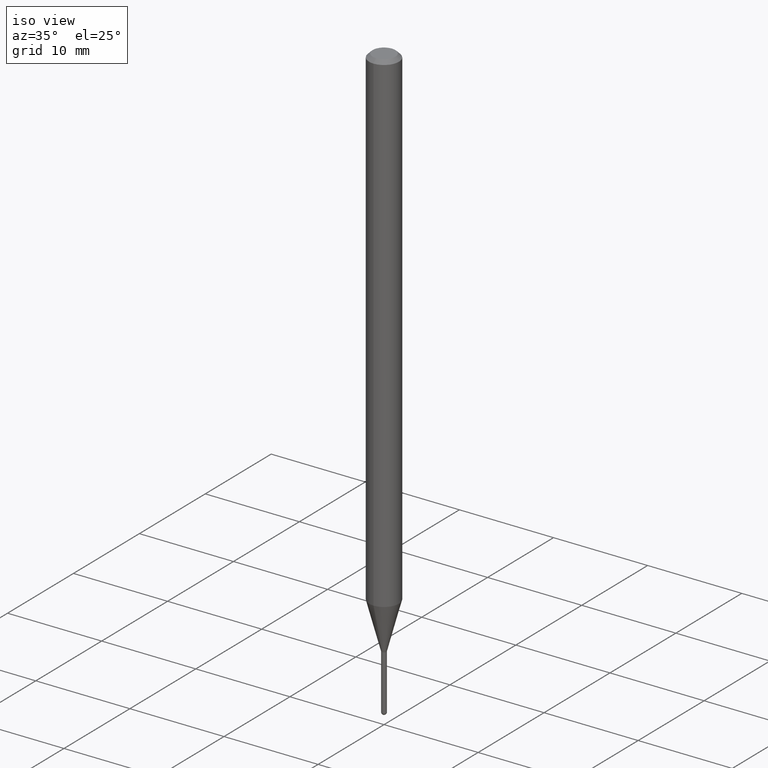
[diagram: clean part render]
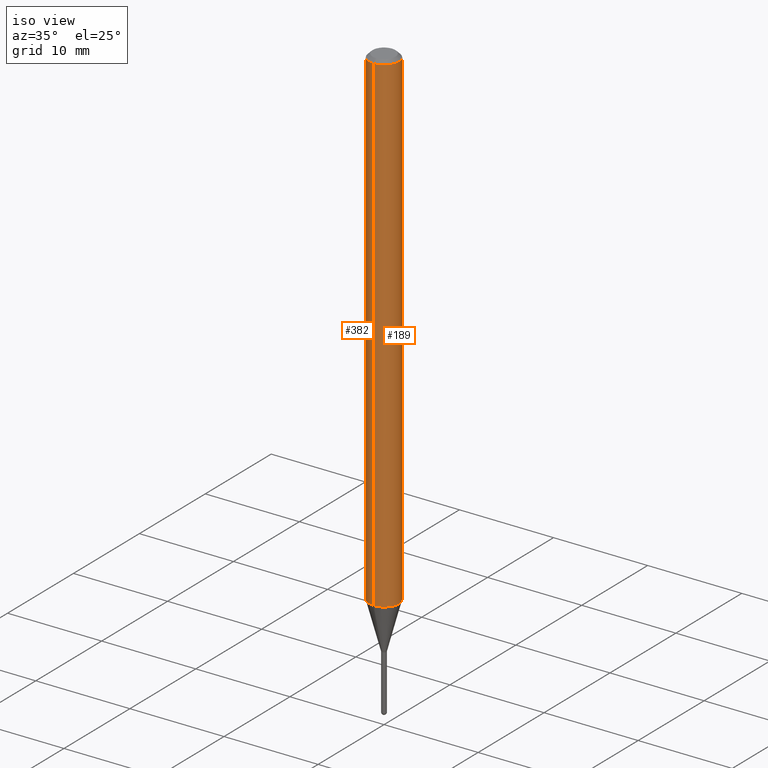
[diagram: same view with one multi-face feature highlighted, each face labeled with its STEP entity id]
A machine part, iso view. The highlighted faces form ONE feature: a constant-radius fillet chain: 2 tangent blend faces with common blend radius 1.5875 mm. The faces share edges in the B-rep.
Their STEP definitions:
[1] entity #189 (Cylinder):
#18 = AXIS2_PLACEMENT_3D ( 'NONE', #251, #452, #129 ) ;
#23 = ORIENTED_EDGE ( 'NONE', *, *, #235, .T. ) ;
#26 = VERTEX_POINT ( 'NONE', #325 ) ;
#36 = EDGE_LOOP ( 'NONE', ( #23, #97, #376, #500 ) ) ;
#58 = DIRECTION ( 'NONE',  ( -2.445506458260102306E-29, 3.491427418928771548E-15, 1.000000000000000000 ) ) ;
#60 = DIRECTION ( 'NONE',  ( -2.445506458260102306E-29, 3.491427418928771548E-15, 1.000000000000000000 ) ) ;
#74 = VERTEX_POINT ( 'NONE', #77 ) ;
#77 = CARTESIAN_POINT ( 'NONE',  ( 4.440892098501133991E-16, 0.06249999999999995143, -0.01500000000000022669 ) ) ;
#91 = DIRECTION ( 'NONE',  ( -2.445506458260102306E-29, 3.491427418928771153E-15, 1.000000000000000000 ) ) ;
#96 = CARTESIAN_POINT ( 'NONE',  ( 5.047689992163456778E-29, -7.206541279564027656E-15, -2.064067332602639304 ) ) ;
#97 = ORIENTED_EDGE ( 'NONE', *, *, #125, .T. ) ;
#106 = VERTEX_POINT ( 'NONE', #116 ) ;
#116 = CARTESIAN_POINT ( 'NONE',  ( 4.440892098501130047E-16, 0.06249999999999279743, -2.064067332602639304 ) ) ;
#123 = LINE ( 'NONE', #284, #287 ) ;
#125 = EDGE_CURVE ( 'NONE', #106, #74, #123, .T. ) ;
#129 = DIRECTION ( 'NONE',  ( -6.982962677686265922E-15, -1.000000000000000000, 3.491427418928771548E-15 ) ) ;
#160 = EDGE_CURVE ( 'NONE', #269, #74, #379, .T. ) ;
#166 = CIRCLE ( 'NONE', #439, 0.06250000000000000000 ) ;
#172 = DIRECTION ( 'NONE',  ( -6.982962677686265922E-15, -1.000000000000000000, 3.483106191921935554E-15 ) ) ;
#173 = VECTOR ( 'NONE', #335, 39.37007874015748143 ) ;
#183 = EDGE_CURVE ( 'NONE', #26, #269, #212, .T. ) ;
#189 = ADVANCED_FACE ( 'NONE', ( #481 ), #484, .T. ) ;
#212 = LINE ( 'NONE', #258, #173 ) ;
#214 = CARTESIAN_POINT ( 'NONE',  ( 3.668259687390156296E-31, -5.237141128393160650E-17, -0.01500000000000000812 ) ) ;
#235 = EDGE_CURVE ( 'NONE', #26, #106, #166, .T. ) ;
#251 = CARTESIAN_POINT ( 'NONE',  ( 0.000000000000000000, 0.000000000000000000, 0.000000000000000000 ) ) ;
#258 = CARTESIAN_POINT ( 'NONE',  ( -4.364351673553916201E-16, -0.06250000000000000000, 2.182142136830482217E-16 ) ) ;
#269 = VERTEX_POINT ( 'NONE', #297 ) ;
#284 = CARTESIAN_POINT ( 'NONE',  ( 4.440892098500625669E-16, 0.06250000000000000000, -2.182142136830482217E-16 ) ) ;
#287 = VECTOR ( 'NONE', #91, 39.37007874015748143 ) ;
#297 = CARTESIAN_POINT ( 'NONE',  ( -4.364351673553912750E-16, -0.06250000000000005551, -0.01499999999999979128 ) ) ;
#325 = CARTESIAN_POINT ( 'NONE',  ( -4.364351673553413302E-16, -0.06250000000000721645, -2.064067332602638860 ) ) ;
#327 = DIRECTION ( 'NONE',  ( -6.982962677686265922E-15, -1.000000000000000000, 4.370956789862821150E-15 ) ) ;
#335 = DIRECTION ( 'NONE',  ( -2.445506458260102306E-29, 3.491427418928771153E-15, 1.000000000000000000 ) ) ;
#353 = AXIS2_PLACEMENT_3D ( 'NONE', #214, #58, #172 ) ;
#376 = ORIENTED_EDGE ( 'NONE', *, *, #160, .F. ) ;
#379 = CIRCLE ( 'NONE', #353, 0.06250000000000000000 ) ;
#439 = AXIS2_PLACEMENT_3D ( 'NONE', #96, #60, #327 ) ;
#452 = DIRECTION ( 'NONE',  ( -2.445506458260102306E-29, 3.491427418928771548E-15, 1.000000000000000000 ) ) ;
#481 = FACE_OUTER_BOUND ( 'NONE', #36, .T. ) ;
#484 = CYLINDRICAL_SURFACE ( 'NONE', #18, 0.06250000000000000000 ) ;
#500 = ORIENTED_EDGE ( 'NONE', *, *, #183, .F. ) ;
[2] entity #382 (Cylinder):
#20 = DIRECTION ( 'NONE',  ( -2.445506458260102306E-29, 3.491427418928771548E-15, 1.000000000000000000 ) ) ;
#25 = DIRECTION ( 'NONE',  ( -6.982962677686265922E-15, -1.000000000000000000, 3.491427418928771548E-15 ) ) ;
#26 = VERTEX_POINT ( 'NONE', #325 ) ;
#74 = VERTEX_POINT ( 'NONE', #77 ) ;
#77 = CARTESIAN_POINT ( 'NONE',  ( 4.440892098501133991E-16, 0.06249999999999995143, -0.01500000000000022669 ) ) ;
#91 = DIRECTION ( 'NONE',  ( -2.445506458260102306E-29, 3.491427418928771153E-15, 1.000000000000000000 ) ) ;
#95 = CIRCLE ( 'NONE', #347, 0.06250000000000000000 ) ;
#98 = DIRECTION ( 'NONE',  ( -2.445506458260102306E-29, 3.491427418928771548E-15, 1.000000000000000000 ) ) ;
#100 = ORIENTED_EDGE ( 'NONE', *, *, #125, .F. ) ;
#106 = VERTEX_POINT ( 'NONE', #116 ) ;
#107 = FACE_OUTER_BOUND ( 'NONE', #495, .T. ) ;
#113 = CIRCLE ( 'NONE', #472, 0.06250000000000000000 ) ;
#115 = DIRECTION ( 'NONE',  ( -2.445506458260102306E-29, 3.491427418928771548E-15, 1.000000000000000000 ) ) ;
#116 = CARTESIAN_POINT ( 'NONE',  ( 4.440892098501130047E-16, 0.06249999999999279743, -2.064067332602639304 ) ) ;
#118 = DIRECTION ( 'NONE',  ( -6.982962677686265922E-15, -1.000000000000000000, 4.370956789862821150E-15 ) ) ;
#123 = LINE ( 'NONE', #284, #287 ) ;
#125 = EDGE_CURVE ( 'NONE', #106, #74, #123, .T. ) ;
#150 = ORIENTED_EDGE ( 'NONE', *, *, #274, .F. ) ;
#164 = DIRECTION ( 'NONE',  ( -6.982962677686265922E-15, -1.000000000000000000, 3.483106191921935554E-15 ) ) ;
#173 = VECTOR ( 'NONE', #335, 39.37007874015748143 ) ;
#175 = CARTESIAN_POINT ( 'NONE',  ( 0.000000000000000000, 0.000000000000000000, 0.000000000000000000 ) ) ;
#183 = EDGE_CURVE ( 'NONE', #26, #269, #212, .T. ) ;
#212 = LINE ( 'NONE', #258, #173 ) ;
#227 = CYLINDRICAL_SURFACE ( 'NONE', #271, 0.06250000000000000000 ) ;
#228 = ORIENTED_EDGE ( 'NONE', *, *, #491, .T. ) ;
#238 = ORIENTED_EDGE ( 'NONE', *, *, #183, .T. ) ;
#258 = CARTESIAN_POINT ( 'NONE',  ( -4.364351673553916201E-16, -0.06250000000000000000, 2.182142136830482217E-16 ) ) ;
#269 = VERTEX_POINT ( 'NONE', #297 ) ;
#271 = AXIS2_PLACEMENT_3D ( 'NONE', #175, #20, #25 ) ;
#274 = EDGE_CURVE ( 'NONE', #74, #269, #113, .T. ) ;
#284 = CARTESIAN_POINT ( 'NONE',  ( 4.440892098500625669E-16, 0.06250000000000000000, -2.182142136830482217E-16 ) ) ;
#287 = VECTOR ( 'NONE', #91, 39.37007874015748143 ) ;
#297 = CARTESIAN_POINT ( 'NONE',  ( -4.364351673553912750E-16, -0.06250000000000005551, -0.01499999999999979128 ) ) ;
#325 = CARTESIAN_POINT ( 'NONE',  ( -4.364351673553413302E-16, -0.06250000000000721645, -2.064067332602638860 ) ) ;
#335 = DIRECTION ( 'NONE',  ( -2.445506458260102306E-29, 3.491427418928771153E-15, 1.000000000000000000 ) ) ;
#347 = AXIS2_PLACEMENT_3D ( 'NONE', #355, #115, #118 ) ;
#355 = CARTESIAN_POINT ( 'NONE',  ( 5.047689992163456778E-29, -7.206541279564027656E-15, -2.064067332602639304 ) ) ;
#382 = ADVANCED_FACE ( 'NONE', ( #107 ), #227, .T. ) ;
#458 = CARTESIAN_POINT ( 'NONE',  ( 3.668259687390156296E-31, -5.237141128393160650E-17, -0.01500000000000000812 ) ) ;
#472 = AXIS2_PLACEMENT_3D ( 'NONE', #458, #98, #164 ) ;
#491 = EDGE_CURVE ( 'NONE', #106, #26, #95, .T. ) ;
#495 = EDGE_LOOP ( 'NONE', ( #100, #228, #238, #150 ) ) ;